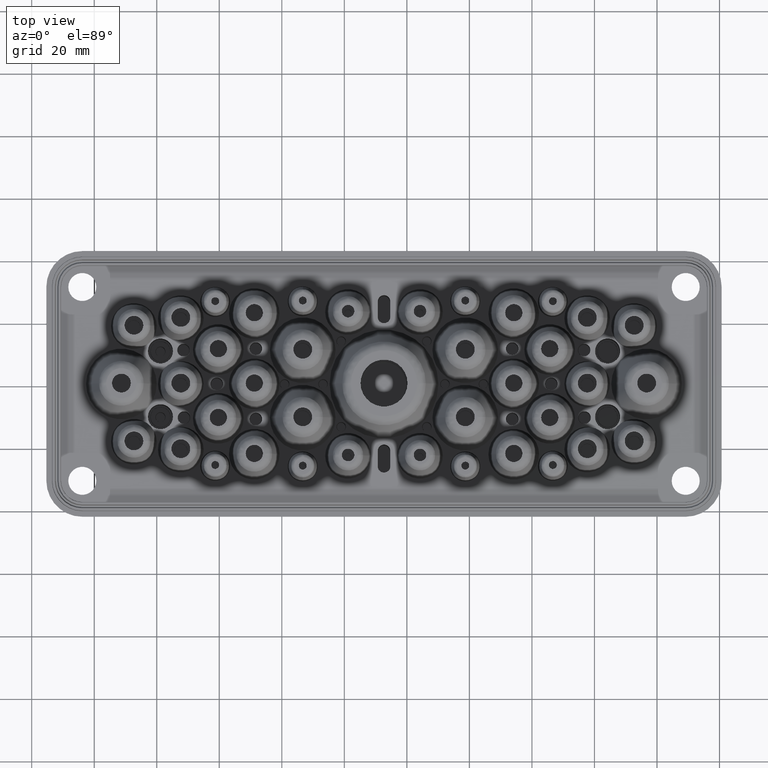
[diagram: clean part render]
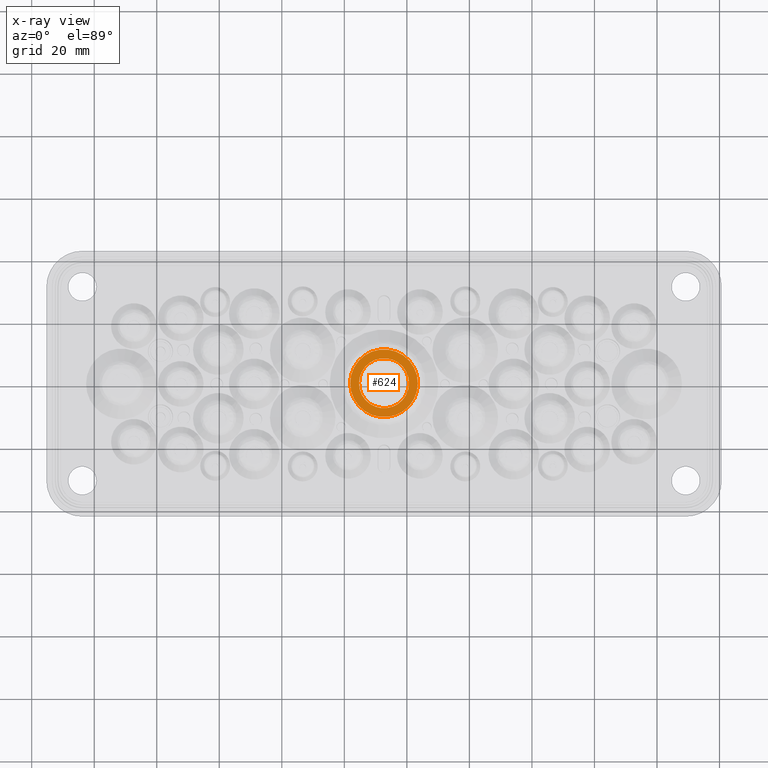
[diagram: x-ray — body ghosted, one internal face saturated and labeled with its STEP entity id]
A machine part, top view, then the same camera in x-ray: the body is ghosted and one INTERNAL B-rep face — a face not visible from any outside direction — is saturated and labeled: STEP entity #624.
In plain terms, the highlighted planar face has unit normal (0, 0, -1).
Its self-contained STEP definition (entity closure, byte-faithful):
#624 = ADVANCED_FACE ( 'NONE', ( #10489, #42396 ), #54357, .T. ) ;
#1362 = CARTESIAN_POINT ( 'NONE',  ( -56.48657739704933100, -59.41030365296027300, 11.50000000000000000 ) ) ;
#1510 = ORIENTED_EDGE ( 'NONE', *, *, #57360, .F. ) ;
#1535 = EDGE_LOOP ( 'NONE', ( #30263, #45958 ) ) ;
#6888 = DIRECTION ( 'NONE',  ( 0.0000000000000000000, 0.0000000000000000000, -1.000000000000000000 ) ) ;
#7600 = AXIS2_PLACEMENT_3D ( 'NONE', #33495, #23805, #19737 ) ;
#10489 = FACE_BOUND ( 'NONE', #34412, .T. ) ;
#12849 = CARTESIAN_POINT ( 'NONE',  ( -82.81351677632118000, -59.41030365296027300, 11.50000000000000000 ) ) ;
#13406 = CIRCLE ( 'NONE', #54247, 10.82693937927184400 ) ;
#18699 = VERTEX_POINT ( 'NONE', #57293 ) ;
#19737 = DIRECTION ( 'NONE',  ( 1.000000000000000000, 0.0000000000000000000, 0.0000000000000000000 ) ) ;
#22077 = VERTEX_POINT ( 'NONE', #1362 ) ;
#23805 = DIRECTION ( 'NONE',  ( 0.0000000000000000000, 0.0000000000000000000, 1.000000000000000000 ) ) ;
#25077 = ORIENTED_EDGE ( 'NONE', *, *, #40855, .F. ) ;
#26059 = DIRECTION ( 'NONE',  ( -1.000000000000000000, 0.0000000000000000000, 0.0000000000000000000 ) ) ;
#27253 = DIRECTION ( 'NONE',  ( 1.000000000000000000, 0.0000000000000000000, 0.0000000000000000000 ) ) ;
#28942 = CARTESIAN_POINT ( 'NONE',  ( -67.31351677632118000, -59.41030365296027300, 11.50000000000000000 ) ) ;
#29351 = DIRECTION ( 'NONE',  ( -1.000000000000000000, 0.0000000000000000000, 0.0000000000000000000 ) ) ;
#30263 = ORIENTED_EDGE ( 'NONE', *, *, #54516, .F. ) ;
#30865 = DIRECTION ( 'NONE',  ( -1.000000000000000000, 0.0000000000000000000, 0.0000000000000000000 ) ) ;
#31111 = DIRECTION ( 'NONE',  ( 0.0000000000000000000, 0.0000000000000000000, 1.000000000000000000 ) ) ;
#33495 = CARTESIAN_POINT ( 'NONE',  ( -67.31351677632118000, -59.41030365296027300, 11.50000000000000000 ) ) ;
#34008 = CARTESIAN_POINT ( 'NONE',  ( -75.31351677632116500, -59.41030365296026600, 11.50000000000000000 ) ) ;
#34398 = DIRECTION ( 'NONE',  ( 0.0000000000000000000, 0.0000000000000000000, -1.000000000000000000 ) ) ;
#34412 = EDGE_LOOP ( 'NONE', ( #1510, #25077 ) ) ;
#34967 = CARTESIAN_POINT ( 'NONE',  ( -67.31351677632118000, -59.41030365296027300, 11.50000000000000000 ) ) ;
#36883 = VERTEX_POINT ( 'NONE', #34008 ) ;
#40855 = EDGE_CURVE ( 'NONE', #36883, #18699, #56973, .T. ) ;
#41112 = CARTESIAN_POINT ( 'NONE',  ( -78.14045615559302900, -59.41030365296027300, 11.50000000000000000 ) ) ;
#42396 = FACE_OUTER_BOUND ( 'NONE', #1535, .T. ) ;
#43176 = CIRCLE ( 'NONE', #7600, 10.82693937927184400 ) ;
#43899 = AXIS2_PLACEMENT_3D ( 'NONE', #34967, #6888, #26059 ) ;
#45135 = CARTESIAN_POINT ( 'NONE',  ( -67.31351677632118000, -59.41030365296027300, 11.50000000000000000 ) ) ;
#45958 = ORIENTED_EDGE ( 'NONE', *, *, #49524, .F. ) ;
#48641 = CIRCLE ( 'NONE', #43899, 7.999999999999992900 ) ;
#49524 = EDGE_CURVE ( 'NONE', #22077, #53991, #13406, .T. ) ;
#53303 = AXIS2_PLACEMENT_3D ( 'NONE', #12849, #54568, #30865 ) ;
#53991 = VERTEX_POINT ( 'NONE', #41112 ) ;
#54247 = AXIS2_PLACEMENT_3D ( 'NONE', #45135, #31111, #27253 ) ;
#54357 = PLANE ( 'NONE',  #53303 ) ;
#54516 = EDGE_CURVE ( 'NONE', #53991, #22077, #43176, .T. ) ;
#54568 = DIRECTION ( 'NONE',  ( 0.0000000000000000000, 0.0000000000000000000, -1.000000000000000000 ) ) ;
#56973 = CIRCLE ( 'NONE', #59120, 7.999999999999992900 ) ;
#57293 = CARTESIAN_POINT ( 'NONE',  ( -59.31351677632118000, -59.41030365296027300, 11.50000000000000000 ) ) ;
#57360 = EDGE_CURVE ( 'NONE', #18699, #36883, #48641, .T. ) ;
#59120 = AXIS2_PLACEMENT_3D ( 'NONE', #28942, #34398, #29351 ) ;